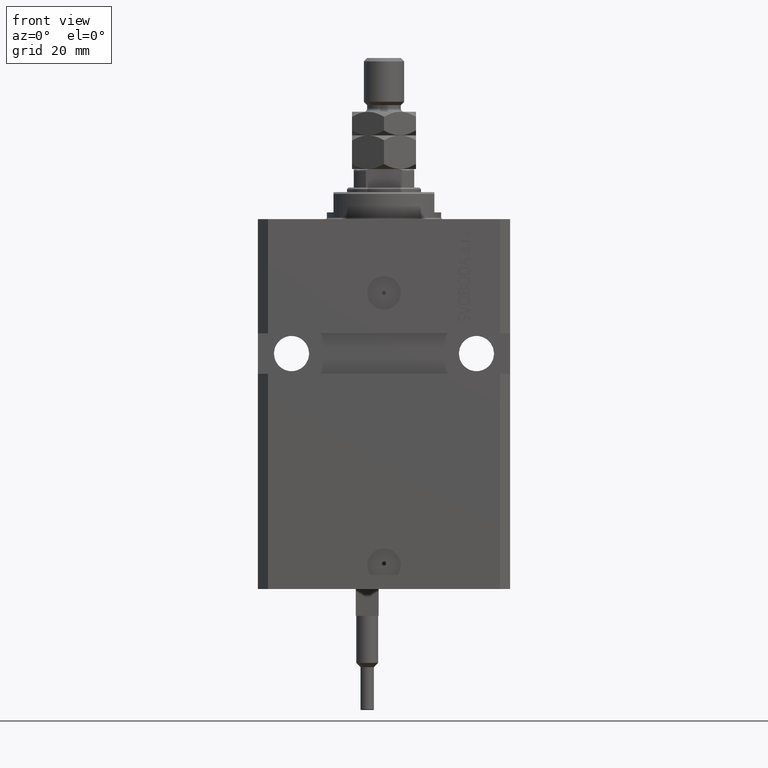
[diagram: clean part render]
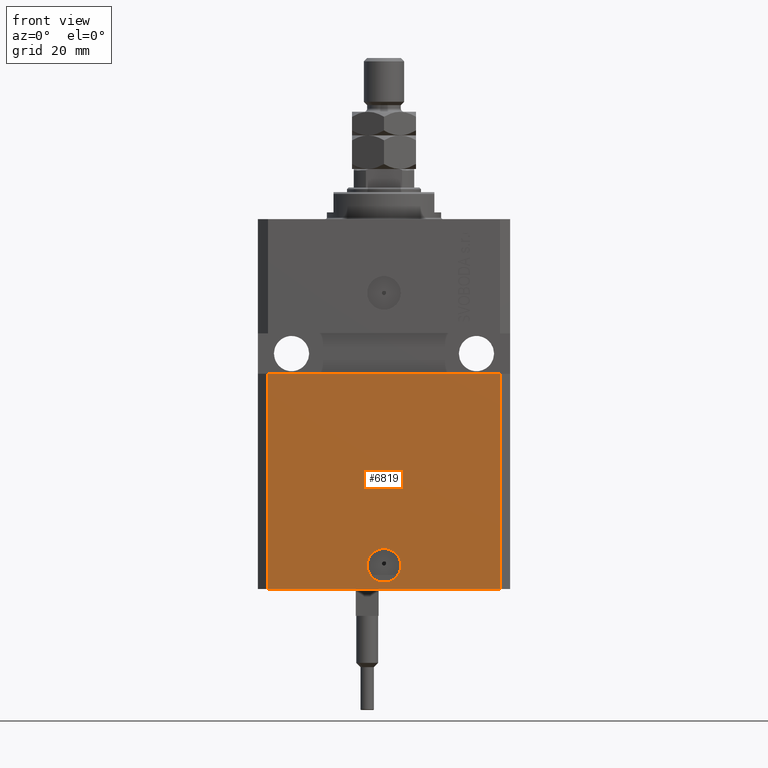
[diagram: same view with one face highlighted and labeled with its STEP entity id]
A machine part, front view. The second image highlights one B-rep face of the part: STEP entity #6819.
In plain terms, the highlighted planar face has unit normal (0, -1, 0).
Its self-contained STEP definition (entity closure, byte-faithful):
#13 = AXIS2_PLACEMENT_3D ( 'NONE', #7877, #32186, #30517 ) ;
#769 = CARTESIAN_POINT ( 'NONE',  ( 34.49999999999999289, -27.49999999999999289, -46.00000000000000711 ) ) ;
#2143 = ORIENTED_EDGE ( 'NONE', *, *, #17547, .F. ) ;
#2239 = VECTOR ( 'NONE', #40587, 1000.000000000000000 ) ;
#2637 = VERTEX_POINT ( 'NONE', #769 ) ;
#3877 = FACE_BOUND ( 'NONE', #31124, .T. ) ;
#4977 = ORIENTED_EDGE ( 'NONE', *, *, #5685, .T. ) ;
#5599 = CIRCLE ( 'NONE', #13, 5.000000000000006217 ) ;
#5685 = EDGE_CURVE ( 'NONE', #23842, #21117, #48648, .T. ) ;
#6174 = DIRECTION ( 'NONE',  ( 1.000000000000000000, 0.000000000000000000, 0.000000000000000000 ) ) ;
#6398 = DIRECTION ( 'NONE',  ( 0.000000000000000000, 0.000000000000000000, 1.000000000000000000 ) ) ;
#6819 = ADVANCED_FACE ( 'NONE', ( #3877, #15807 ), #41415, .T. ) ;
#7122 = DIRECTION ( 'NONE',  ( 0.000000000000000000, -0.000000000000000000, -1.000000000000000000 ) ) ;
#7518 = CARTESIAN_POINT ( 'NONE',  ( 34.49999999999999289, -27.49999999999999645, -110.0000000000000000 ) ) ;
#7752 = EDGE_CURVE ( 'NONE', #26316, #28183, #5599, .T. ) ;
#7877 = CARTESIAN_POINT ( 'NONE',  ( 0.000000000000000000, -27.49999999999999645, -103.0000000000000000 ) ) ;
#8724 = LINE ( 'NONE', #35324, #17174 ) ;
#9137 = CARTESIAN_POINT ( 'NONE',  ( 5.000000000000006217, -27.49999999999999645, -103.0000000000000000 ) ) ;
#10928 = CARTESIAN_POINT ( 'NONE',  ( -5.000000000000006217, -27.49999999999999645, -103.0000000000000000 ) ) ;
#13753 = LINE ( 'NONE', #37335, #2239 ) ;
#14075 = ORIENTED_EDGE ( 'NONE', *, *, #7752, .F. ) ;
#14132 = CARTESIAN_POINT ( 'NONE',  ( 0.000000000000000000, -27.49999999999999645, -103.0000000000000000 ) ) ;
#15807 = FACE_OUTER_BOUND ( 'NONE', #22371, .T. ) ;
#17174 = VECTOR ( 'NONE', #39306, 1000.000000000000000 ) ;
#17547 = EDGE_CURVE ( 'NONE', #28183, #26316, #46884, .T. ) ;
#17614 = CARTESIAN_POINT ( 'NONE',  ( 34.49999999999999289, -27.49999999999999645, -110.0000000000000000 ) ) ;
#18341 = CARTESIAN_POINT ( 'NONE',  ( -34.49999999999998579, -27.49999999999999645, -110.0000000000000000 ) ) ;
#18664 = CARTESIAN_POINT ( 'NONE',  ( -34.49999999999998579, -27.50000000000000000, -46.00000000000000000 ) ) ;
#19066 = AXIS2_PLACEMENT_3D ( 'NONE', #19068, #22550, #7122 ) ;
#19068 = CARTESIAN_POINT ( 'NONE',  ( -34.49999999999998579, -27.49999999999999645, -110.0000000000000000 ) ) ;
#19751 = ORIENTED_EDGE ( 'NONE', *, *, #41350, .F. ) ;
#21117 = VERTEX_POINT ( 'NONE', #7518 ) ;
#22371 = EDGE_LOOP ( 'NONE', ( #31541, #19751, #4977, #49216 ) ) ;
#22550 = DIRECTION ( 'NONE',  ( 0.000000000000000000, -1.000000000000000000, 0.000000000000000000 ) ) ;
#23842 = VERTEX_POINT ( 'NONE', #33147 ) ;
#26316 = VERTEX_POINT ( 'NONE', #9137 ) ;
#28183 = VERTEX_POINT ( 'NONE', #10928 ) ;
#30517 = DIRECTION ( 'NONE',  ( 1.000000000000000000, 0.000000000000000000, 0.000000000000000000 ) ) ;
#31124 = EDGE_LOOP ( 'NONE', ( #14075, #2143 ) ) ;
#31541 = ORIENTED_EDGE ( 'NONE', *, *, #33348, .F. ) ;
#32186 = DIRECTION ( 'NONE',  ( 1.176083712526788232E-16, -1.000000000000000000, 0.000000000000000000 ) ) ;
#32286 = DIRECTION ( 'NONE',  ( 1.176083712526788232E-16, -1.000000000000000000, 0.000000000000000000 ) ) ;
#33147 = CARTESIAN_POINT ( 'NONE',  ( -34.49999999999998579, -27.49999999999999645, -110.0000000000000000 ) ) ;
#33348 = EDGE_CURVE ( 'NONE', #42417, #2637, #8724, .T. ) ;
#33478 = DIRECTION ( 'NONE',  ( 1.000000000000000000, 0.000000000000000000, 0.000000000000000000 ) ) ;
#35324 = CARTESIAN_POINT ( 'NONE',  ( -37.50000000000000000, -27.50000000000000000, -46.00000000000000000 ) ) ;
#37335 = CARTESIAN_POINT ( 'NONE',  ( -34.49999999999998579, -27.49999999999999645, -110.0000000000000000 ) ) ;
#38052 = VECTOR ( 'NONE', #33478, 1000.000000000000000 ) ;
#39306 = DIRECTION ( 'NONE',  ( 1.000000000000000000, 9.251858538542972814E-17, -9.251858538542972814E-17 ) ) ;
#39751 = AXIS2_PLACEMENT_3D ( 'NONE', #14132, #32286, #6174 ) ;
#40587 = DIRECTION ( 'NONE',  ( 0.000000000000000000, 0.000000000000000000, 1.000000000000000000 ) ) ;
#41350 = EDGE_CURVE ( 'NONE', #23842, #42417, #13753, .T. ) ;
#41415 = PLANE ( 'NONE',  #19066 ) ;
#42417 = VERTEX_POINT ( 'NONE', #18664 ) ;
#44232 = EDGE_CURVE ( 'NONE', #21117, #2637, #47674, .T. ) ;
#46884 = CIRCLE ( 'NONE', #39751, 5.000000000000006217 ) ;
#47152 = VECTOR ( 'NONE', #6398, 1000.000000000000000 ) ;
#47674 = LINE ( 'NONE', #17614, #47152 ) ;
#48648 = LINE ( 'NONE', #18341, #38052 ) ;
#49216 = ORIENTED_EDGE ( 'NONE', *, *, #44232, .T. ) ;